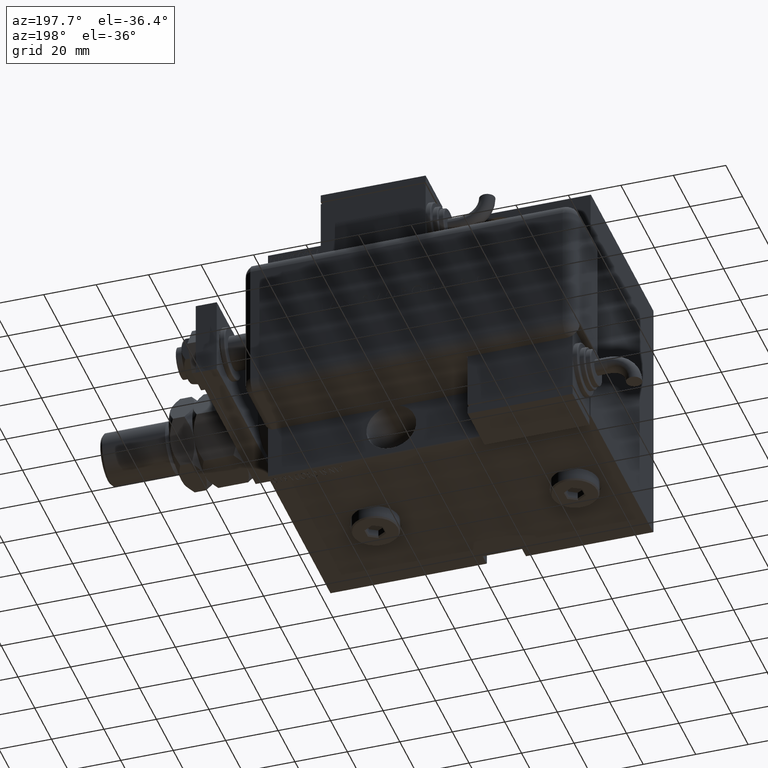
[diagram: clean part render]
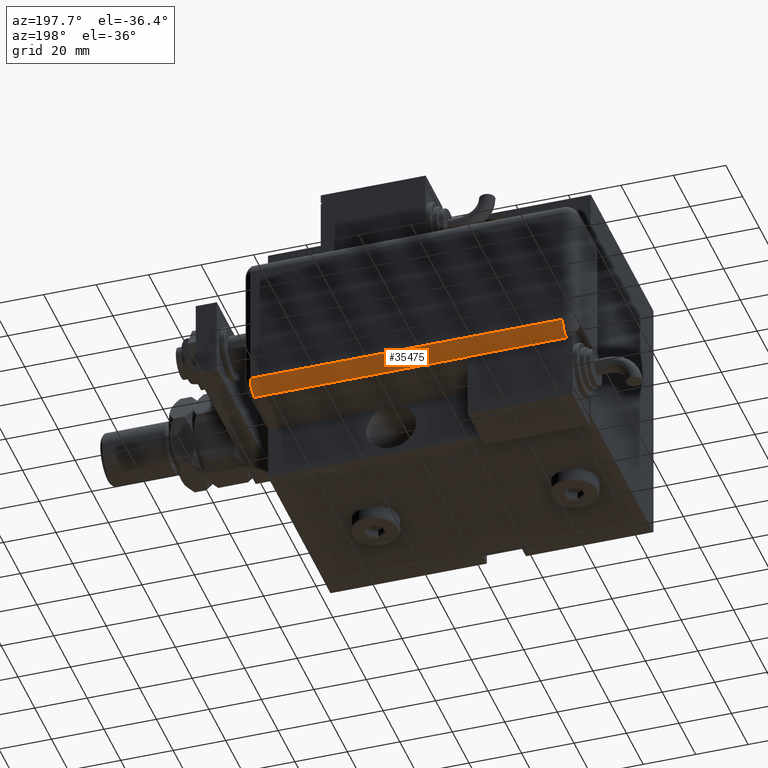
[diagram: same view with one face highlighted and labeled with its STEP entity id]
A machine part, auxiliary view. The second image highlights one B-rep face of the part: STEP entity #35475.
In plain terms, the highlighted cylindrical surface (edge-blend (fillet) strip) has radius 5 mm, axis along (-1, -0, -0).
Its self-contained STEP definition (entity closure, byte-faithful):
#15 = CARTESIAN_POINT ( 'NONE',  ( 23.99999999999999289, 25.79999999999998295, 5.000000000000004441 ) ) ;
#1232 = CARTESIAN_POINT ( 'NONE',  ( 28.99599839871871154, 20.99999999999998224, 124.0000000000000000 ) ) ;
#1546 = DIRECTION ( 'NONE',  ( -0.000000000000000000, -0.000000000000000000, 1.000000000000000000 ) ) ;
#5780 = VECTOR ( 'NONE', #30603, 1000.000000000000000 ) ;
#5991 = EDGE_CURVE ( 'NONE', #15781, #60784, #56603, .T. ) ;
#6904 = ORIENTED_EDGE ( 'NONE', *, *, #52910, .F. ) ;
#7622 = AXIS2_PLACEMENT_3D ( 'NONE', #16312, #50011, #26927 ) ;
#7807 = ORIENTED_EDGE ( 'NONE', *, *, #57338, .F. ) ;
#7879 = CARTESIAN_POINT ( 'NONE',  ( 28.99999999999999645, 20.79999999999998295, 43.00000000000000000 ) ) ;
#8603 = CIRCLE ( 'NONE', #7622, 5.000000000000000888 ) ;
#9087 = CARTESIAN_POINT ( 'NONE',  ( 23.99999999999999289, 20.79999999999998295, 124.0000000000000000 ) ) ;
#11156 = CARTESIAN_POINT ( 'NONE',  ( 28.99999999999999645, 20.79999999999998295, 124.0000000000000000 ) ) ;
#11248 = CARTESIAN_POINT ( 'NONE',  ( 28.99999999999999645, 20.79999999999998295, 124.0000000000000000 ) ) ;
#11587 = EDGE_CURVE ( 'NONE', #13124, #53798, #32322, .T. ) ;
#13124 = VERTEX_POINT ( 'NONE', #26846 ) ;
#13564 = CARTESIAN_POINT ( 'NONE',  ( 23.99999999999999289, 25.79999999999998295, 124.0000000000000000 ) ) ;
#14512 = VERTEX_POINT ( 'NONE', #16721 ) ;
#15017 = DIRECTION ( 'NONE',  ( 0.000000000000000000, 0.000000000000000000, -1.000000000000000000 ) ) ;
#15781 = VERTEX_POINT ( 'NONE', #13564 ) ;
#16312 = CARTESIAN_POINT ( 'NONE',  ( 23.99999999999999289, 20.79999999999998295, 124.0000000000000000 ) ) ;
#16721 = CARTESIAN_POINT ( 'NONE',  ( 28.99599839871871154, 21.00000000000000000, 5.000000000000004441 ) ) ;
#17436 = AXIS2_PLACEMENT_3D ( 'NONE', #22199, #56819, #22512 ) ;
#18229 = DIRECTION ( 'NONE',  ( 0.000000000000000000, 0.000000000000000000, -1.000000000000000000 ) ) ;
#20359 = EDGE_CURVE ( 'NONE', #14512, #13124, #49310, .T. ) ;
#20640 = VERTEX_POINT ( 'NONE', #11156 ) ;
#22199 = CARTESIAN_POINT ( 'NONE',  ( 23.99999999999999289, 20.79999999999998295, 5.000000000000004441 ) ) ;
#22512 = DIRECTION ( 'NONE',  ( -1.000000000000000000, 0.000000000000000000, 0.000000000000000000 ) ) ;
#24277 = ORIENTED_EDGE ( 'NONE', *, *, #11587, .F. ) ;
#26846 = CARTESIAN_POINT ( 'NONE',  ( 28.99599839871871154, 20.99999999999999289, 43.00000000000000000 ) ) ;
#26927 = DIRECTION ( 'NONE',  ( -1.000000000000000000, 0.000000000000000000, 0.000000000000000000 ) ) ;
#30603 = DIRECTION ( 'NONE',  ( -0.000000000000000000, -0.000000000000000000, 1.000000000000000000 ) ) ;
#32322 = CIRCLE ( 'NONE', #43258, 5.000000000000000888 ) ;
#33995 = AXIS2_PLACEMENT_3D ( 'NONE', #9087, #15017, #57446 ) ;
#34484 = ORIENTED_EDGE ( 'NONE', *, *, #20359, .F. ) ;
#35475 = ADVANCED_FACE ( 'NONE', ( #57756 ), #38119, .T. ) ;
#38119 = CYLINDRICAL_SURFACE ( 'NONE', #33995, 5.000000000000000888 ) ;
#43258 = AXIS2_PLACEMENT_3D ( 'NONE', #60210, #61132, #46792 ) ;
#46792 = DIRECTION ( 'NONE',  ( 1.000000000000000000, -6.383782391594648845E-14, 0.000000000000000000 ) ) ;
#47478 = VECTOR ( 'NONE', #1546, 1000.000000000000000 ) ;
#48087 = EDGE_CURVE ( 'NONE', #14512, #60784, #53295, .T. ) ;
#49310 = LINE ( 'NONE', #1232, #47478 ) ;
#50011 = DIRECTION ( 'NONE',  ( -0.000000000000000000, -0.000000000000000000, 1.000000000000000000 ) ) ;
#50770 = VECTOR ( 'NONE', #18229, 1000.000000000000000 ) ;
#52910 = EDGE_CURVE ( 'NONE', #20640, #15781, #8603, .T. ) ;
#53295 = CIRCLE ( 'NONE', #17436, 5.000000000000000888 ) ;
#53798 = VERTEX_POINT ( 'NONE', #7879 ) ;
#54322 = LINE ( 'NONE', #11248, #5780 ) ;
#56603 = LINE ( 'NONE', #60674, #50770 ) ;
#56819 = DIRECTION ( 'NONE',  ( -0.000000000000000000, -0.000000000000000000, 1.000000000000000000 ) ) ;
#57168 = ORIENTED_EDGE ( 'NONE', *, *, #5991, .F. ) ;
#57338 = EDGE_CURVE ( 'NONE', #53798, #20640, #54322, .T. ) ;
#57446 = DIRECTION ( 'NONE',  ( -1.000000000000000000, 0.000000000000000000, 0.000000000000000000 ) ) ;
#57756 = FACE_OUTER_BOUND ( 'NONE', #61437, .T. ) ;
#60210 = CARTESIAN_POINT ( 'NONE',  ( 23.99999999999999289, 20.79999999999998295, 43.00000000000000000 ) ) ;
#60674 = CARTESIAN_POINT ( 'NONE',  ( 23.99999999999999289, 25.79999999999998295, 124.0000000000000000 ) ) ;
#60784 = VERTEX_POINT ( 'NONE', #15 ) ;
#61116 = ORIENTED_EDGE ( 'NONE', *, *, #48087, .T. ) ;
#61132 = DIRECTION ( 'NONE',  ( -0.000000000000000000, 0.000000000000000000, -1.000000000000000000 ) ) ;
#61437 = EDGE_LOOP ( 'NONE', ( #24277, #34484, #61116, #57168, #6904, #7807 ) ) ;